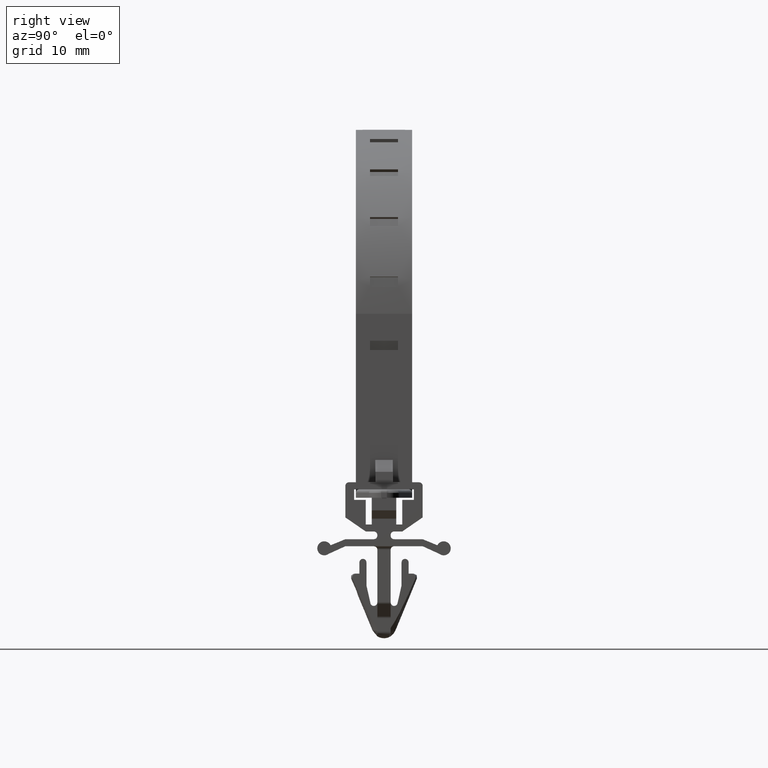
[diagram: clean part render]
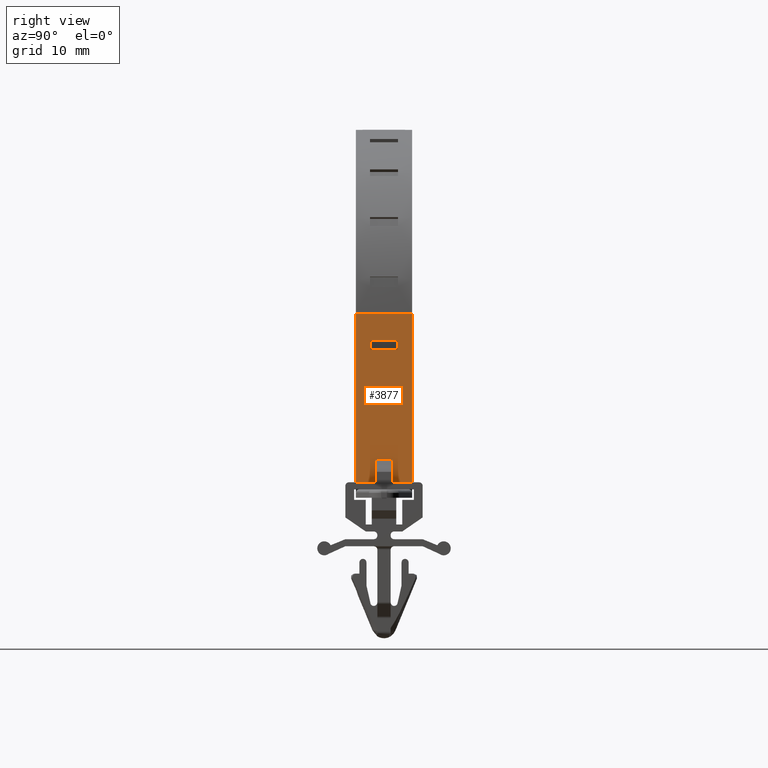
[diagram: same view with one face highlighted and labeled with its STEP entity id]
A machine part, right view. The second image highlights one B-rep face of the part: STEP entity #3877.
In plain terms, the highlighted face is a freeform B-spline surface patch.
Its self-contained STEP definition (entity closure, byte-faithful):
#1336=CARTESIAN_POINT('',(11.199999999999999,-2.0,9.828411774049041));
#1337=VERTEX_POINT('',#1336);
#1345=CARTESIAN_POINT('',(11.199999999999999,-2.0,11.141803064352500));
#1346=VERTEX_POINT('',#1345);
#1352=CARTESIAN_POINT('',(11.199999999999999,-2.0,9.828411774049041));
#1353=CARTESIAN_POINT('',(11.199999999999999,-2.0,11.141803064352500));
#1354=QUASI_UNIFORM_CURVE('',1,(#1352,#1353),.UNSPECIFIED.,.F.,.U.);
#1355=EDGE_CURVE('',#1337,#1346,#1354,.T.);
#1365=CARTESIAN_POINT('',(11.199999999999999,2.0,9.828411774049041));
#1366=VERTEX_POINT('',#1365);
#1367=CARTESIAN_POINT('',(11.199999999999999,2.0,11.141803064352500));
#1368=VERTEX_POINT('',#1367);
#1369=CARTESIAN_POINT('',(11.199999999999999,2.0,9.828411774049041));
#1370=CARTESIAN_POINT('',(11.199999999999999,2.0,11.141803064352500));
#1371=QUASI_UNIFORM_CURVE('',1,(#1369,#1370),.UNSPECIFIED.,.F.,.U.);
#1372=EDGE_CURVE('',#1366,#1368,#1371,.T.);
#1397=CARTESIAN_POINT('',(11.199999999999999,2.0,9.828411774049041));
#1398=CARTESIAN_POINT('',(11.199999999999999,-2.0,9.828411774049041));
#1399=QUASI_UNIFORM_CURVE('',1,(#1397,#1398),.UNSPECIFIED.,.F.,.U.);
#1400=EDGE_CURVE('',#1366,#1337,#1399,.T.);
#1413=CARTESIAN_POINT('',(11.199999999999999,-2.0,11.141803064352500));
#1414=CARTESIAN_POINT('',(11.199999999999999,2.0,11.141803064352500));
#1415=QUASI_UNIFORM_CURVE('',1,(#1413,#1414),.UNSPECIFIED.,.F.,.U.);
#1416=EDGE_CURVE('',#1346,#1368,#1415,.T.);
#3401=CARTESIAN_POINT('',(11.199999999999999,-1.250000000000000,-9.0));
#3402=VERTEX_POINT('',#3401);
#3410=CARTESIAN_POINT('',(11.199999999999999,-4.0,-9.0));
#3411=VERTEX_POINT('',#3410);
#3412=CARTESIAN_POINT('',(11.199999999999999,-1.250000000000000,-9.0));
#3413=CARTESIAN_POINT('',(11.199999999999999,-4.0,-9.0));
#3414=QUASI_UNIFORM_CURVE('',1,(#3412,#3413),.UNSPECIFIED.,.F.,.U.);
#3415=EDGE_CURVE('',#3402,#3411,#3414,.T.);
#3440=CARTESIAN_POINT('',(11.199999999999999,-4.0,15.0));
#3441=VERTEX_POINT('',#3440);
#3442=CARTESIAN_POINT('',(11.199999999999999,-4.0,15.0));
#3443=CARTESIAN_POINT('',(11.199999999999999,-4.0,-9.0));
#3444=QUASI_UNIFORM_CURVE('',1,(#3442,#3443),.UNSPECIFIED.,.F.,.U.);
#3445=EDGE_CURVE('',#3441,#3411,#3444,.T.);
#3521=CARTESIAN_POINT('',(11.199999999999999,4.0,-9.0));
#3522=VERTEX_POINT('',#3521);
#3572=CARTESIAN_POINT('',(11.199999999999999,4.0,15.0));
#3573=VERTEX_POINT('',#3572);
#3599=CARTESIAN_POINT('',(11.199999999999999,4.0,15.0));
#3600=CARTESIAN_POINT('',(11.199999999999999,4.0,-9.0));
#3601=QUASI_UNIFORM_CURVE('',1,(#3599,#3600),.UNSPECIFIED.,.F.,.U.);
#3602=EDGE_CURVE('',#3573,#3522,#3601,.T.);
#3746=CARTESIAN_POINT('',(11.199999999999999,4.0,15.0));
#3747=CARTESIAN_POINT('',(11.199999999999999,-4.0,15.0));
#3748=QUASI_UNIFORM_CURVE('',1,(#3746,#3747),.UNSPECIFIED.,.F.,.U.);
#3749=EDGE_CURVE('',#3573,#3441,#3748,.T.);
#3834=CARTESIAN_POINT('',(11.199999999999999,-4.399599984494448,-10.198799953483340));
#3835=CARTESIAN_POINT('',(11.199999999999999,-4.399599984494448,16.198800597213509));
#3836=CARTESIAN_POINT('',(11.199999999999999,4.399600199071169,-10.198799953483340));
#3837=CARTESIAN_POINT('',(11.199999999999999,4.399600199071169,16.198800597213509));
#3838=B_SPLINE_SURFACE_WITH_KNOTS('',1,1,((#3834,#3836),(#3835,#3837)),.UNSPECIFIED.,.F.,.F.,.U.,(2,2),(2,2),(0.0,26.397600550696851),(0.0,8.799200183565617),.UNSPECIFIED.);
#3839=CARTESIAN_POINT('',(11.199999999999999,1.249999999999972,-5.799999999999780));
#3840=VERTEX_POINT('',#3839);
#3841=CARTESIAN_POINT('',(11.199999999999999,-1.249999999999972,-5.799999999999780));
#3842=VERTEX_POINT('',#3841);
#3843=CARTESIAN_POINT('',(11.199999999999999,1.249999999999972,-5.799999999999780));
#3844=CARTESIAN_POINT('',(11.199999999999999,-1.249999999999972,-5.799999999999780));
#3845=QUASI_UNIFORM_CURVE('',1,(#3843,#3844),.UNSPECIFIED.,.F.,.U.);
#3846=EDGE_CURVE('',#3840,#3842,#3845,.T.);
#3847=ORIENTED_EDGE('',*,*,#3846,.F.);
#3848=CARTESIAN_POINT('',(11.199999999999999,1.250000000000000,-9.0));
#3849=VERTEX_POINT('',#3848);
#3850=CARTESIAN_POINT('',(11.199999999999999,1.249999999999972,-5.799999999999780));
#3851=CARTESIAN_POINT('',(11.199999999999999,1.250000000000000,-9.0));
#3852=QUASI_UNIFORM_CURVE('',1,(#3850,#3851),.UNSPECIFIED.,.F.,.U.);
#3853=EDGE_CURVE('',#3840,#3849,#3852,.T.);
#3854=ORIENTED_EDGE('',*,*,#3853,.T.);
#3855=CARTESIAN_POINT('',(11.199999999999999,4.0,-9.0));
#3856=CARTESIAN_POINT('',(11.199999999999999,1.250000000000000,-9.0));
#3857=QUASI_UNIFORM_CURVE('',1,(#3855,#3856),.UNSPECIFIED.,.F.,.U.);
#3858=EDGE_CURVE('',#3522,#3849,#3857,.T.);
#3859=ORIENTED_EDGE('',*,*,#3858,.F.);
#3860=ORIENTED_EDGE('',*,*,#3602,.F.);
#3861=ORIENTED_EDGE('',*,*,#3749,.T.);
#3862=ORIENTED_EDGE('',*,*,#3445,.T.);
#3863=ORIENTED_EDGE('',*,*,#3415,.F.);
#3864=CARTESIAN_POINT('',(11.199999999999999,-1.249999999999972,-5.799999999999780));
#3865=CARTESIAN_POINT('',(11.199999999999999,-1.250000000000000,-9.0));
#3866=QUASI_UNIFORM_CURVE('',1,(#3864,#3865),.UNSPECIFIED.,.F.,.U.);
#3867=EDGE_CURVE('',#3842,#3402,#3866,.T.);
#3868=ORIENTED_EDGE('',*,*,#3867,.F.);
#3869=EDGE_LOOP('',(#3847,#3854,#3859,#3860,#3861,#3862,#3863,#3868));
#3870=FACE_OUTER_BOUND('',#3869,.T.);
#3871=ORIENTED_EDGE('',*,*,#1372,.F.);
#3872=ORIENTED_EDGE('',*,*,#1400,.T.);
#3873=ORIENTED_EDGE('',*,*,#1355,.T.);
#3874=ORIENTED_EDGE('',*,*,#1416,.T.);
#3875=EDGE_LOOP('',(#3871,#3872,#3873,#3874));
#3876=FACE_BOUND('',#3875,.T.);
#3877=ADVANCED_FACE('',(#3870,#3876),#3838,.F.);